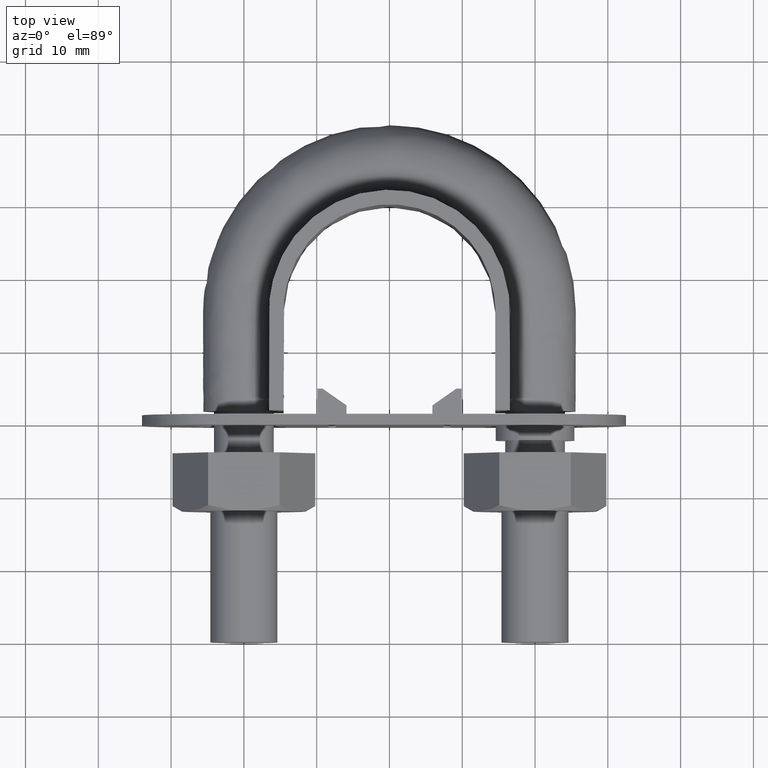
[diagram: clean part render]
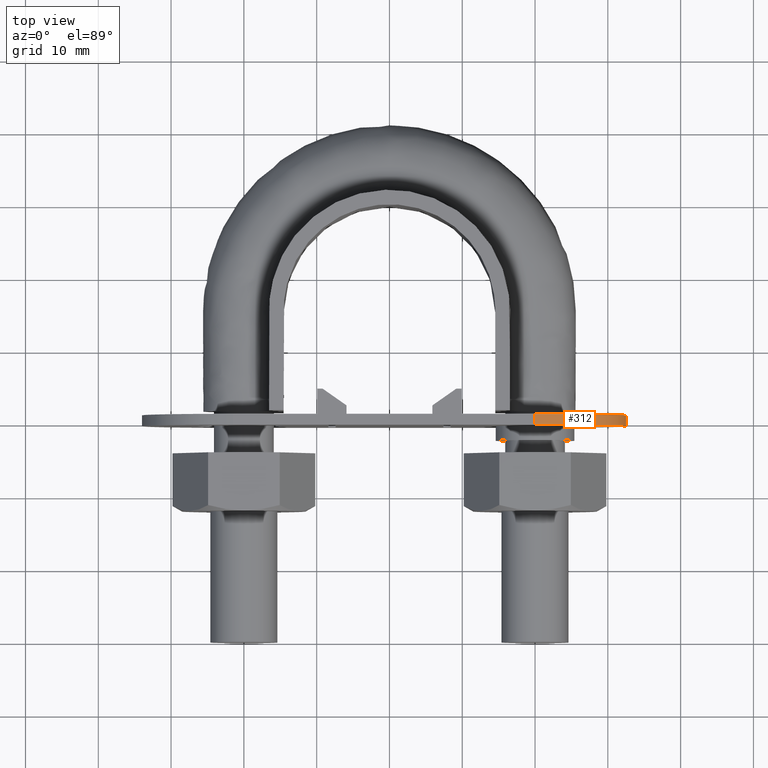
[diagram: same view with one face highlighted and labeled with its STEP entity id]
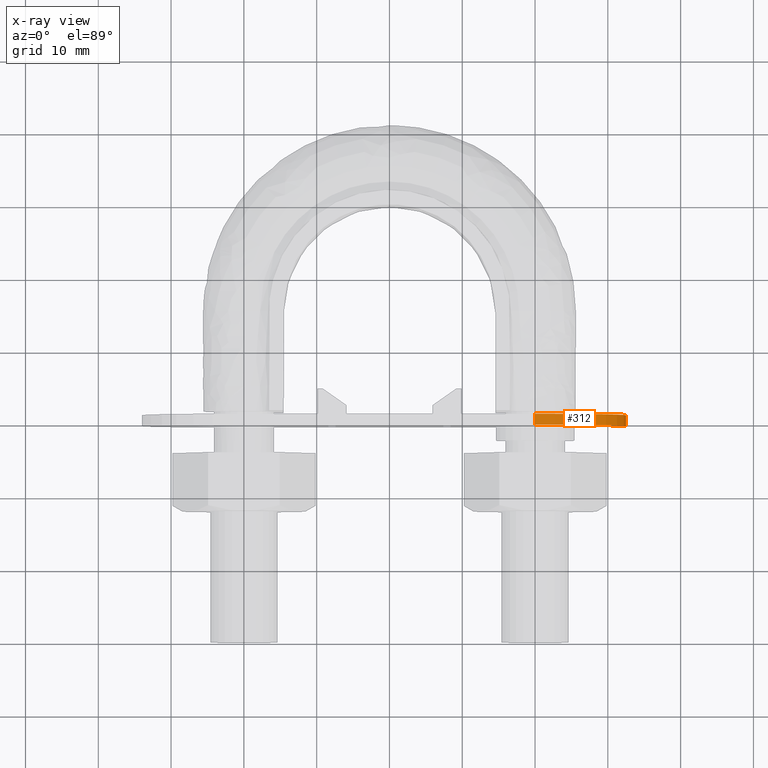
[diagram: x-ray of the same camera — body ghosted, the highlighted face saturated]
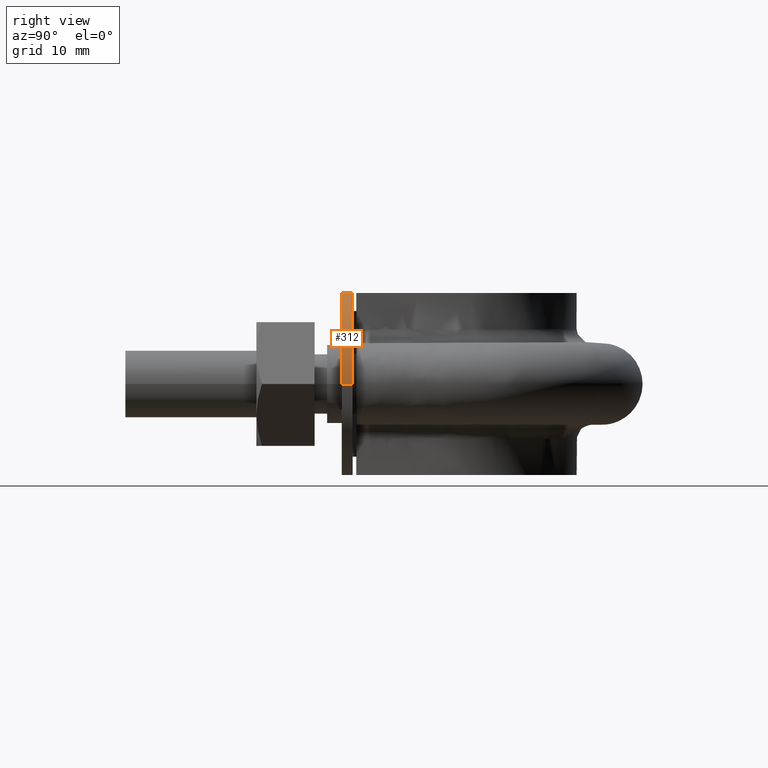
[diagram: same view with one face highlighted and labeled with its STEP entity id]
A machine part, top view. The second image highlights one B-rep face of the part: STEP entity #312.
The next image is the same camera in x-ray: the body ghosted, the highlighted face saturated — about 0% of this face is hidden behind the body in this view.
A second angle (right view) of the same face is appended — the face is thin or edge-on in the first view.
In plain terms, the highlighted cylindrical surface (partial cylindrical patch) has radius 12.5 mm, axis along (0, -1, -0).
Its self-contained STEP definition (entity closure, byte-faithful):
#312 = ADVANCED_FACE( '', ( #490 ), #491, .T. );
#490 = FACE_OUTER_BOUND( '', #1561, .T. );
#491 = CYLINDRICAL_SURFACE( '', #1562, 12.5000000000000 );
#1561 = EDGE_LOOP( '', ( #2033, #2034, #2035, #2036 ) );
#1562 = AXIS2_PLACEMENT_3D( '', #2037, #2038, #2039 );
#2033 = ORIENTED_EDGE( '', *, *, #2618, .F. );
#2034 = ORIENTED_EDGE( '', *, *, #2639, .F. );
#2035 = ORIENTED_EDGE( '', *, *, #2589, .T. );
#2036 = ORIENTED_EDGE( '', *, *, #2638, .T. );
#2037 = CARTESIAN_POINT( '', ( 19.9999999999931, 29.7200000000190, -1.86510315040858E-007 ) );
#2038 = DIRECTION( '', ( 9.38505765720277E-013, -1.00000000000000, -8.50274527685322E-013 ) );
#2039 = DIRECTION( '', ( 9.32517985052728E-009, -8.50274518933586E-013, 1.00000000000000 ) );
#2589 = EDGE_CURVE( '', #2868, #2866, #2869, .T. );
#2618 = EDGE_CURVE( '', #2918, #2920, #2921, .T. );
#2638 = EDGE_CURVE( '', #2866, #2920, #2953, .T. );
#2639 = EDGE_CURVE( '', #2868, #2918, #2954, .T. );
#2866 = VERTEX_POINT( '', #3455 );
#2868 = VERTEX_POINT( '', #3457 );
#2869 = CIRCLE( '', #3458, 12.5000000000000 );
#2918 = VERTEX_POINT( '', #3530 );
#2920 = VERTEX_POINT( '', #3533 );
#2921 = CIRCLE( '', #3534, 12.5000000000000 );
#2953 = LINE( '', #3579, #3580 );
#2954 = LINE( '', #3581, #3582 );
#3455 = CARTESIAN_POINT( '', ( 32.4999999999931, 29.7200000000307, -3.03075056233555E-007 ) );
#3457 = CARTESIAN_POINT( '', ( 20.0000001165578, 29.7200000000084, 12.4999998134897 ) );
#3458 = AXIS2_PLACEMENT_3D( '', #4079, #4080, #4081 );
#3530 = CARTESIAN_POINT( '', ( 20.0000001165564, 31.2200000000084, 12.4999998134910 ) );
#3533 = CARTESIAN_POINT( '', ( 32.4999999999917, 31.2200000000307, -3.03073780821764E-007 ) );
#3534 = AXIS2_PLACEMENT_3D( '', #4118, #4119, #4120 );
#3579 = CARTESIAN_POINT( '', ( 32.4999999999931, 29.7200000000307, -3.03075056233555E-007 ) );
#3580 = VECTOR( '', #4152, 1000.00000000000 );
#3581 = CARTESIAN_POINT( '', ( 20.0000001165578, 29.7200000000084, 12.4999998134897 ) );
#3582 = VECTOR( '', #4153, 1000.00000000000 );
#4079 = CARTESIAN_POINT( '', ( 19.9999999999931, 29.7200000000190, -1.86510315040858E-007 ) );
#4080 = DIRECTION( '', ( -9.38505765720277E-013, 1.00000000000000, 8.50274527685322E-013 ) );
#4081 = DIRECTION( '', ( 9.32517929541577E-009, -8.50274518933587E-013, 1.00000000000000 ) );
#4118 = CARTESIAN_POINT( '', ( 19.9999999999917, 31.2200000000190, -1.86509039629067E-007 ) );
#4119 = DIRECTION( '', ( -9.38505765720277E-013, 1.00000000000000, 8.50274527685322E-013 ) );
#4120 = DIRECTION( '', ( 9.32517929541577E-009, -8.50274518933587E-013, 1.00000000000000 ) );
#4152 = DIRECTION( '', ( -9.38505765720277E-013, 1.00000000000000, 8.50274527685322E-013 ) );
#4153 = DIRECTION( '', ( -9.38505765720277E-013, 1.00000000000000, 8.50274527685322E-013 ) );